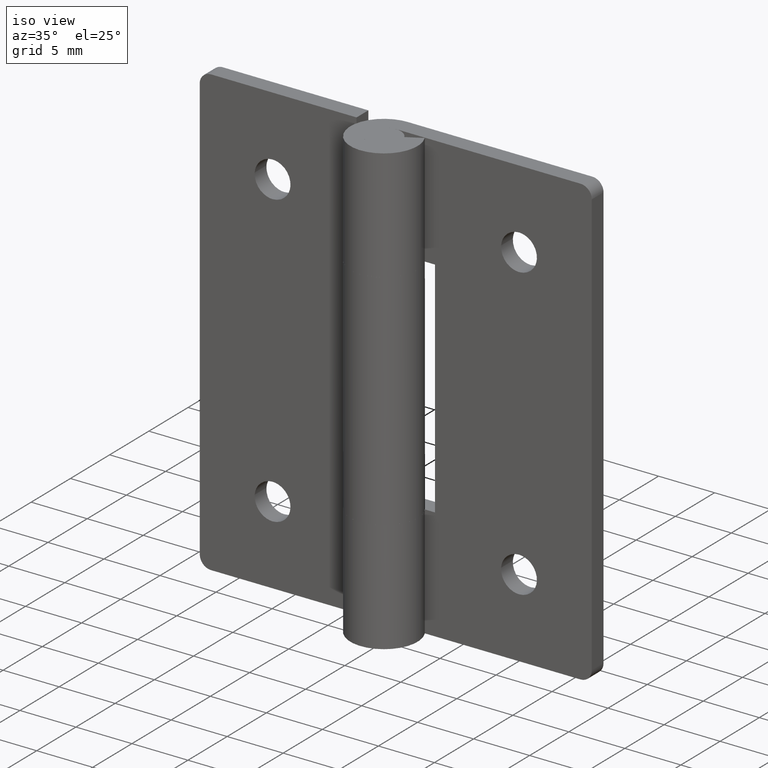
[diagram: clean part render]
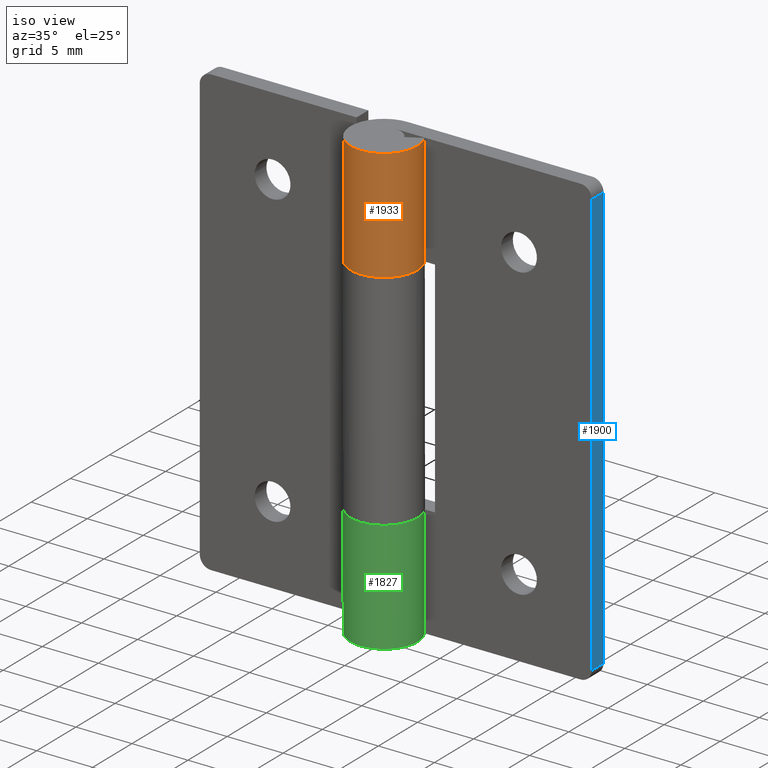
[diagram: same view with three faces highlighted in distinct colors, each labeled with its STEP entity id]
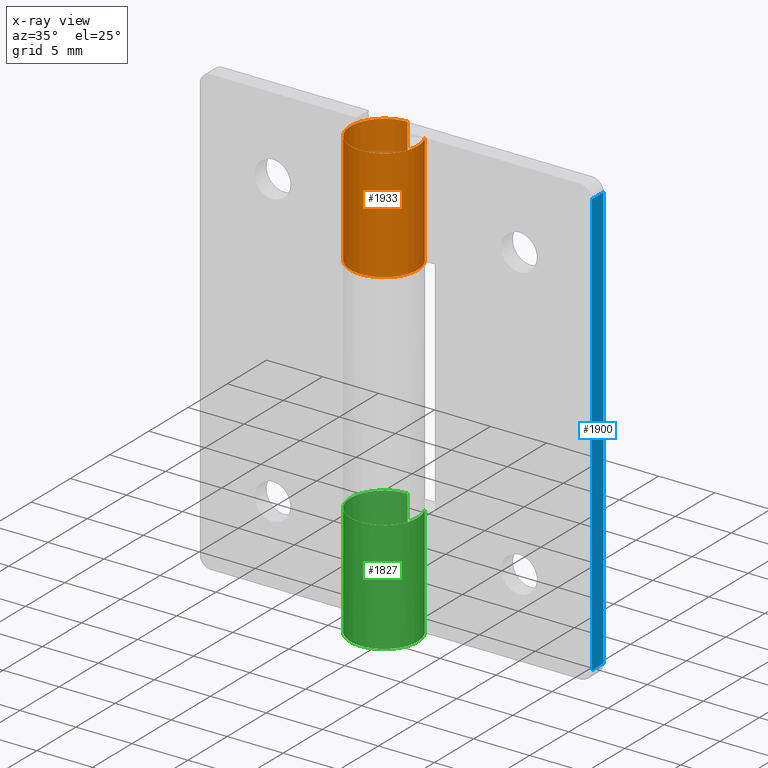
[diagram: x-ray of the same camera — body ghosted, the three highlighted faces saturated]
A machine part, iso view with three faces highlighted in distinct colors.
The next image is the same camera in x-ray (body ghosted, the three faces saturated) — at least one of them is partly hidden behind the body in this view.
Their STEP definitions:

[orange] entity #1933 — the highlighted face is a freeform B-spline surface patch.
#1510=CARTESIAN_POINT('',(2.626309197333780,1.450000000000000,29.999992000000049));
#1511=VERTEX_POINT('',#1510);
#1517=CARTESIAN_POINT('',(0.0,3.0,29.999991999999999));
#1518=VERTEX_POINT('',#1517);
#1519=CARTESIAN_POINT('',(2.626309197333780,1.450000000000000,29.999992000000049));
#1520=CARTESIAN_POINT('',(3.733431584505770,-0.555272902071675,29.999992000000052));
#1521=CARTESIAN_POINT('',(2.090650590886091,-2.151552952364324,29.999992000000049));
#1522=CARTESIAN_POINT('',(0.447869597266413,-3.747833002656972,29.999992000000052));
#1523=CARTESIAN_POINT('',(-1.524795068197689,-2.583602136552764,29.999992000000049));
#1524=CARTESIAN_POINT('',(-3.497459733661792,-1.419371270448555,29.999992000000052));
#1525=CARTESIAN_POINT('',(-2.894028888043301,0.790314364775722,29.999992000000049));
#1526=CARTESIAN_POINT('',(-2.290598042424809,3.000000000000000,29.999992000000052));
#1527=CARTESIAN_POINT('',(0.0,3.0,29.999992000000049));
#1535=(BOUNDED_CURVE()B_SPLINE_CURVE(2,(#1519,#1520,#1521,#1522,#1523,#1524,#1525,#1526,#1527),.UNSPECIFIED.,.F.,.U.)B_SPLINE_CURVE_WITH_KNOTS((3,2,2,2,3),(0.0,0.250000000000000,0.500000000000000,0.750000000000000,1.0),.UNSPECIFIED.)CURVE()GEOMETRIC_REPRESENTATION_ITEM()RATIONAL_B_SPLINE_CURVE((1.0,0.794807562115481,1.0,0.794807562115481,1.0,0.794807562115481,1.0,0.794807562115481,1.0))REPRESENTATION_ITEM(''));
#1536=EDGE_CURVE('',#1511,#1518,#1535,.T.);
#1734=CARTESIAN_POINT('',(-5.510729E-016,3.0,40.0));
#1735=VERTEX_POINT('',#1734);
#1741=CARTESIAN_POINT('',(2.626309197333780,1.450000000000000,40.0));
#1742=VERTEX_POINT('',#1741);
#1743=CARTESIAN_POINT('',(2.626309197333780,1.450000000000000,40.0));
#1744=CARTESIAN_POINT('',(3.733431584505770,-0.555272902071675,40.000000000000007));
#1745=CARTESIAN_POINT('',(2.090650590886091,-2.151552952364324,40.0));
#1746=CARTESIAN_POINT('',(0.447869597266413,-3.747833002656972,40.000000000000007));
#1747=CARTESIAN_POINT('',(-1.524795068197689,-2.583602136552764,40.0));
#1748=CARTESIAN_POINT('',(-3.497459733661792,-1.419371270448555,40.000000000000007));
#1749=CARTESIAN_POINT('',(-2.894028888043301,0.790314364775722,40.0));
#1750=CARTESIAN_POINT('',(-2.290598042424809,3.000000000000000,40.000000000000007));
#1751=CARTESIAN_POINT('',(0.0,3.0,40.0));
#1759=(BOUNDED_CURVE()B_SPLINE_CURVE(2,(#1743,#1744,#1745,#1746,#1747,#1748,#1749,#1750,#1751),.UNSPECIFIED.,.F.,.U.)B_SPLINE_CURVE_WITH_KNOTS((3,2,2,2,3),(0.0,0.250000000000000,0.500000000000000,0.750000000000000,1.0),.UNSPECIFIED.)CURVE()GEOMETRIC_REPRESENTATION_ITEM()RATIONAL_B_SPLINE_CURVE((1.0,0.794807562115481,1.0,0.794807562115481,1.0,0.794807562115481,1.0,0.794807562115481,1.0))REPRESENTATION_ITEM(''));
#1760=EDGE_CURVE('',#1742,#1735,#1759,.T.);
#1840=CARTESIAN_POINT('',(2.626309197333780,1.450000000000000,40.0));
#1841=CARTESIAN_POINT('',(2.626309197333780,1.450000000000000,29.999992000000049));
#1842=QUASI_UNIFORM_CURVE('',1,(#1840,#1841),.UNSPECIFIED.,.F.,.U.);
#1843=EDGE_CURVE('',#1742,#1511,#1842,.T.);
#1901=CARTESIAN_POINT('',(0.078530844923623,2.998971974926671,40.250000200000009));
#1902=CARTESIAN_POINT('',(0.078530844923623,2.998971974926671,29.743741794999998));
#1903=CARTESIAN_POINT('',(-3.559513073218585,3.094237507632406,40.250000200000002));
#1904=CARTESIAN_POINT('',(-3.559513073218585,3.094237507632406,29.743741795000005));
#1905=CARTESIAN_POINT('',(-2.958856804611695,-0.495142817582027,40.250000200000009));
#1906=CARTESIAN_POINT('',(-2.958856804611695,-0.495142817582027,29.743741794999998));
#1907=CARTESIAN_POINT('',(-2.358200536004804,-4.084523142796462,40.250000200000002));
#1908=CARTESIAN_POINT('',(-2.358200536004804,-4.084523142796462,29.743741795000005));
#1909=CARTESIAN_POINT('',(1.050622143778396,-2.810016567745195,40.250000200000009));
#1910=CARTESIAN_POINT('',(1.050622143778396,-2.810016567745195,29.743741794999998));
#1911=CARTESIAN_POINT('',(4.459444823561597,-1.535509992693930,40.250000200000002));
#1912=CARTESIAN_POINT('',(4.459444823561597,-1.535509992693930,29.743741795000005));
#1913=CARTESIAN_POINT('',(2.557920493062281,1.567495694147839,40.250000200000009));
#1914=CARTESIAN_POINT('',(2.557920493062281,1.567495694147839,29.743741794999998));
#1922=(BOUNDED_SURFACE()B_SPLINE_SURFACE(1,2,((#1901,#1903,#1905,#1907,#1909,#1911,#1913),(#1902,#1904,#1906,#1908,#1910,#1912,#1914)),.UNSPECIFIED.,.F.,.F.,.U.)B_SPLINE_SURFACE_WITH_KNOTS((2,2),(3,2,2,3),(0.0,10.506258405000009),(0.0,5.659567425254652,11.319134850509300,16.978702275763961),.UNSPECIFIED.)GEOMETRIC_REPRESENTATION_ITEM()RATIONAL_B_SPLINE_SURFACE(((1.0,0.636078220277764,1.0,0.636078220277764,1.0,0.636078220277764,1.0),(1.0,0.636078220277764,1.0,0.636078220277764,1.0,0.636078220277764,1.0)))REPRESENTATION_ITEM('')SURFACE());
#1923=CARTESIAN_POINT('',(-5.510729E-016,3.0,40.0));
#1924=CARTESIAN_POINT('',(0.0,3.0,29.999991999999999));
#1925=QUASI_UNIFORM_CURVE('',1,(#1923,#1924),.UNSPECIFIED.,.F.,.U.);
#1926=EDGE_CURVE('',#1735,#1518,#1925,.T.);
#1927=ORIENTED_EDGE('',*,*,#1926,.T.);
#1928=ORIENTED_EDGE('',*,*,#1536,.F.);
#1929=ORIENTED_EDGE('',*,*,#1843,.F.);
#1930=ORIENTED_EDGE('',*,*,#1760,.T.);
#1931=EDGE_LOOP('',(#1927,#1928,#1929,#1930));
#1932=FACE_OUTER_BOUND('',#1931,.T.);
#1933=ADVANCED_FACE('',(#1932),#1922,.T.);

[blue] entity #1900 — the highlighted face is a freeform B-spline surface patch.
#1369=CARTESIAN_POINT('',(17.500000000000000,3.0,39.0));
#1370=VERTEX_POINT('',#1369);
#1391=CARTESIAN_POINT('',(17.500000000000000,1.500000000000000,39.0));
#1392=VERTEX_POINT('',#1391);
#1406=CARTESIAN_POINT('',(17.500000000000000,3.0,39.0));
#1407=CARTESIAN_POINT('',(17.500000000000000,1.500000000000000,39.0));
#1408=QUASI_UNIFORM_CURVE('',1,(#1406,#1407),.UNSPECIFIED.,.F.,.U.);
#1409=EDGE_CURVE('',#1370,#1392,#1408,.T.);
#1428=CARTESIAN_POINT('',(17.500000000000000,3.0,1.0));
#1429=VERTEX_POINT('',#1428);
#1445=CARTESIAN_POINT('',(17.500000000000000,1.500000000000000,1.0));
#1446=VERTEX_POINT('',#1445);
#1447=CARTESIAN_POINT('',(17.500000000000000,1.500000000000000,1.0));
#1448=CARTESIAN_POINT('',(17.500000000000000,3.0,1.0));
#1449=QUASI_UNIFORM_CURVE('',1,(#1447,#1448),.UNSPECIFIED.,.F.,.U.);
#1450=EDGE_CURVE('',#1446,#1429,#1449,.T.);
#1881=CARTESIAN_POINT('',(17.500000000000000,1.425075002907291,40.898099926348621));
#1882=CARTESIAN_POINT('',(17.500000000000000,1.425075002907291,-0.898100945588053));
#1883=CARTESIAN_POINT('',(17.500000000000000,3.074925037325845,40.898099926348621));
#1884=CARTESIAN_POINT('',(17.500000000000000,3.074925037325845,-0.898100945588053));
#1885=B_SPLINE_SURFACE_WITH_KNOTS('',1,1,((#1881,#1883),(#1882,#1884)),.UNSPECIFIED.,.F.,.F.,.U.,(2,2),(2,2),(0.0,41.796200871936684),(0.041708334948495,0.958291687403247),.UNSPECIFIED.);
#1886=CARTESIAN_POINT('',(17.500000000000000,1.500000000000000,39.0));
#1887=CARTESIAN_POINT('',(17.500000000000000,1.500000000000000,1.0));
#1888=QUASI_UNIFORM_CURVE('',1,(#1886,#1887),.UNSPECIFIED.,.F.,.U.);
#1889=EDGE_CURVE('',#1392,#1446,#1888,.T.);
#1890=ORIENTED_EDGE('',*,*,#1889,.T.);
#1891=ORIENTED_EDGE('',*,*,#1450,.T.);
#1892=CARTESIAN_POINT('',(17.500000000000000,3.0,39.0));
#1893=CARTESIAN_POINT('',(17.500000000000000,3.0,1.0));
#1894=QUASI_UNIFORM_CURVE('',1,(#1892,#1893),.UNSPECIFIED.,.F.,.U.);
#1895=EDGE_CURVE('',#1370,#1429,#1894,.T.);
#1896=ORIENTED_EDGE('',*,*,#1895,.F.);
#1897=ORIENTED_EDGE('',*,*,#1409,.T.);
#1898=EDGE_LOOP('',(#1890,#1891,#1896,#1897));
#1899=FACE_OUTER_BOUND('',#1898,.T.);
#1900=ADVANCED_FACE('',(#1899),#1885,.T.);

[green] entity #1827 — the highlighted face is a freeform B-spline surface patch.
#1574=CARTESIAN_POINT('',(0.0,3.0,10.0));
#1575=VERTEX_POINT('',#1574);
#1581=CARTESIAN_POINT('',(2.626309197333780,1.450000000000000,10.0));
#1582=VERTEX_POINT('',#1581);
#1583=CARTESIAN_POINT('',(0.0,3.0,10.0));
#1584=CARTESIAN_POINT('',(-2.290598042424808,3.0,10.0));
#1585=CARTESIAN_POINT('',(-2.894028888043301,0.790314364775724,10.0));
#1586=CARTESIAN_POINT('',(-3.497459733661794,-1.419371270448550,10.0));
#1587=CARTESIAN_POINT('',(-1.524795068197693,-2.583602136552761,10.0));
#1588=CARTESIAN_POINT('',(0.447869597266408,-3.747833002656974,10.0));
#1589=CARTESIAN_POINT('',(2.090650590886088,-2.151552952364328,10.0));
#1590=CARTESIAN_POINT('',(3.733431584505768,-0.555272902071681,10.0));
#1591=CARTESIAN_POINT('',(2.626309197333781,1.449999999999996,10.0));
#1599=(BOUNDED_CURVE()B_SPLINE_CURVE(2,(#1583,#1584,#1585,#1586,#1587,#1588,#1589,#1590,#1591),.UNSPECIFIED.,.F.,.U.)B_SPLINE_CURVE_WITH_KNOTS((3,2,2,2,3),(0.0,0.250000000000000,0.500000000000000,0.750000000000000,1.0),.UNSPECIFIED.)CURVE()GEOMETRIC_REPRESENTATION_ITEM()RATIONAL_B_SPLINE_CURVE((1.0,0.794807562115481,1.0,0.794807562115481,1.0,0.794807562115481,1.0,0.794807562115481,1.0))REPRESENTATION_ITEM(''));
#1600=EDGE_CURVE('',#1575,#1582,#1599,.T.);
#1656=CARTESIAN_POINT('',(-5.510729E-016,3.0,0.0));
#1657=VERTEX_POINT('',#1656);
#1692=CARTESIAN_POINT('',(2.626309197333780,1.450000000000000,0.0));
#1693=VERTEX_POINT('',#1692);
#1699=CARTESIAN_POINT('',(2.626309197333780,1.450000000000000,0.0));
#1700=CARTESIAN_POINT('',(3.733431584505770,-0.555272902071675,0.0));
#1701=CARTESIAN_POINT('',(2.090650590886091,-2.151552952364324,0.0));
#1702=CARTESIAN_POINT('',(0.447869597266413,-3.747833002656972,0.0));
#1703=CARTESIAN_POINT('',(-1.524795068197689,-2.583602136552764,0.0));
#1704=CARTESIAN_POINT('',(-3.497459733661792,-1.419371270448555,0.0));
#1705=CARTESIAN_POINT('',(-2.894028888043301,0.790314364775722,0.0));
#1706=CARTESIAN_POINT('',(-2.290598042424809,3.000000000000000,0.0));
#1707=CARTESIAN_POINT('',(0.0,3.0,0.0));
#1715=(BOUNDED_CURVE()B_SPLINE_CURVE(2,(#1699,#1700,#1701,#1702,#1703,#1704,#1705,#1706,#1707),.UNSPECIFIED.,.F.,.U.)B_SPLINE_CURVE_WITH_KNOTS((3,2,2,2,3),(0.0,0.250000000000000,0.500000000000000,0.750000000000000,1.0),.UNSPECIFIED.)CURVE()GEOMETRIC_REPRESENTATION_ITEM()RATIONAL_B_SPLINE_CURVE((1.0,0.794807562115481,1.0,0.794807562115481,1.0,0.794807562115481,1.0,0.794807562115481,1.0))REPRESENTATION_ITEM(''));
#1716=EDGE_CURVE('',#1693,#1657,#1715,.T.);
#1791=CARTESIAN_POINT('',(0.026179606495119,2.999885769192513,10.250000000000000));
#1792=CARTESIAN_POINT('',(0.026179606495119,2.999885769192513,-0.256250000000001));
#1793=CARTESIAN_POINT('',(-3.591480617393748,3.031456611678275,10.250000000000004));
#1794=CARTESIAN_POINT('',(-3.591480617393748,3.031456611678275,-0.256250000000001));
#1795=CARTESIAN_POINT('',(-2.952895395395788,-0.529536385766218,10.250000000000000));
#1796=CARTESIAN_POINT('',(-2.952895395395788,-0.529536385766218,-0.256250000000001));
#1797=CARTESIAN_POINT('',(-2.314310173397830,-4.090529383210711,10.250000000000004));
#1798=CARTESIAN_POINT('',(-2.314310173397830,-4.090529383210711,-0.256250000000001));
#1799=CARTESIAN_POINT('',(1.066952285444628,-2.803856776046965,10.250000000000000));
#1800=CARTESIAN_POINT('',(1.066952285444628,-2.803856776046965,-0.256250000000001));
#1801=CARTESIAN_POINT('',(4.448214744287087,-1.517184168883220,10.250000000000004));
#1802=CARTESIAN_POINT('',(4.448214744287087,-1.517184168883220,-0.256250000000001));
#1803=CARTESIAN_POINT('',(2.557920493062278,1.567495694147844,10.250000000000000));
#1804=CARTESIAN_POINT('',(2.557920493062278,1.567495694147844,-0.256250000000001));
#1812=(BOUNDED_SURFACE()B_SPLINE_SURFACE(1,2,((#1791,#1793,#1795,#1797,#1799,#1801,#1803),(#1792,#1794,#1796,#1798,#1800,#1802,#1804)),.UNSPECIFIED.,.F.,.F.,.U.)B_SPLINE_SURFACE_WITH_KNOTS((2,2),(3,2,2,3),(0.0,10.506250000000000),(0.0,5.638246512160404,11.276493024320811,16.914739536481211),.UNSPECIFIED.)GEOMETRIC_REPRESENTATION_ITEM()RATIONAL_B_SPLINE_SURFACE(((1.0,0.638320090924328,1.0,0.638320090924328,1.0,0.638320090924328,1.0),(1.0,0.638320090924328,1.0,0.638320090924328,1.0,0.638320090924328,1.0)))REPRESENTATION_ITEM('')SURFACE());
#1813=CARTESIAN_POINT('',(2.626309197333780,1.450000000000000,10.0));
#1814=CARTESIAN_POINT('',(2.626309197333780,1.450000000000000,0.0));
#1815=QUASI_UNIFORM_CURVE('',1,(#1813,#1814),.UNSPECIFIED.,.F.,.U.);
#1816=EDGE_CURVE('',#1582,#1693,#1815,.T.);
#1817=ORIENTED_EDGE('',*,*,#1816,.F.);
#1818=ORIENTED_EDGE('',*,*,#1600,.F.);
#1819=CARTESIAN_POINT('',(0.0,3.0,10.0));
#1820=CARTESIAN_POINT('',(-5.510729E-016,3.0,0.0));
#1821=QUASI_UNIFORM_CURVE('',1,(#1819,#1820),.UNSPECIFIED.,.F.,.U.);
#1822=EDGE_CURVE('',#1575,#1657,#1821,.T.);
#1823=ORIENTED_EDGE('',*,*,#1822,.T.);
#1824=ORIENTED_EDGE('',*,*,#1716,.F.);
#1825=EDGE_LOOP('',(#1817,#1818,#1823,#1824));
#1826=FACE_OUTER_BOUND('',#1825,.T.);
#1827=ADVANCED_FACE('',(#1826),#1812,.T.);